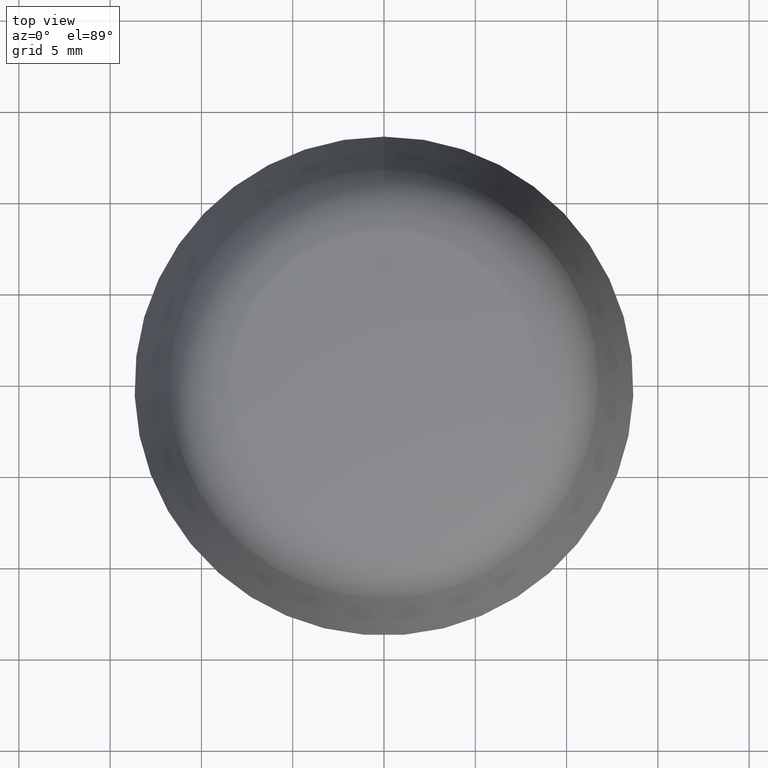
[diagram: clean part render]
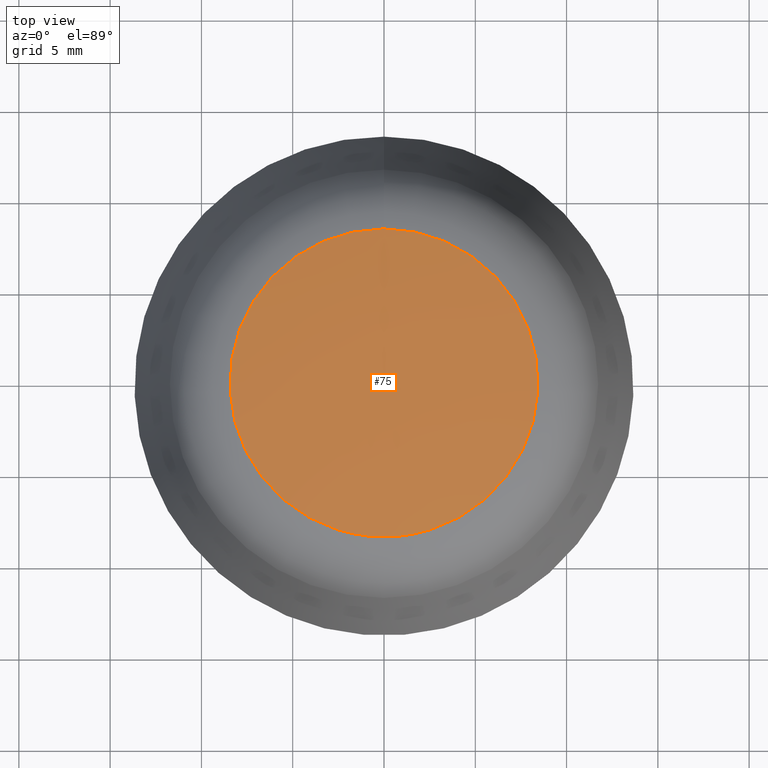
[diagram: same view with one face highlighted and labeled with its STEP entity id]
A machine part, top view. The second image highlights one B-rep face of the part: STEP entity #75.
In plain terms, the highlighted face is a freeform B-spline surface patch.
Its self-contained STEP definition (entity closure, byte-faithful):
#75 = ADVANCED_FACE( '', ( #85, #86 ), #87, .T. );
#85 = FACE_BOUND( '', #111, .T. );
#86 = FACE_OUTER_BOUND( '', #112, .T. );
#87 = ( B_SPLINE_SURFACE( 3, 3, ( ( #114, #115, #116, #117, #118, #119, #120 ), ( #121, #122, #123, #124, #125, #126, #127 ), ( #128, #129, #130, #131, #132, #133, #134 ), ( #135, #136, #137, #138, #139, #140, #141 ) ), .UNSPECIFIED., .F., .T., .F. )B_SPLINE_SURFACE_WITH_KNOTS( ( 4, 4 ), ( 4, 3, 4 ), ( 0.000000000000000, 6.28318530717959 ), ( -1.58186288141690, -1.50492370624145, -1.42798453106601 ), .UNSPECIFIED. )RATIONAL_B_SPLINE_SURFACE( ( ( 1.00000000000000, 0.333333333333333, 0.333333333333333, 1.00000000000000, 0.333333333333333, 0.333333333333333, 1.00000000000000 ), ( 0.998027760974012, 0.332675920324671, 0.332675920324671, 0.998027760974012, 0.332675920324671, 0.332675920324671, 0.998027760974012 ), ( 0.998027760974012, 0.332675920324671, 0.332675920324671, 0.998027760974012, 0.332675920324671, 0.332675920324671, 0.998027760974012 ), ( 1.00000000000000, 0.333333333333333, 0.333333333333333, 1.00000000000000, 0.333333333333333, 0.333333333333333, 1.00000000000000 ) ) )BOUNDED_SURFACE(  )REPRESENTATION_ITEM( '' )GEOMETRIC_REPRESENTATION_ITEM(  )SURFACE(  ) );
#111 = VERTEX_LOOP( '', #171 );
#112 = EDGE_LOOP( '', ( #172 ) );
#114 = CARTESIAN_POINT( '', ( 0.000000000000000, 8.43662452578654, 10.1434522097763 ) );
#115 = CARTESIAN_POINT( '', ( 16.8732490515731, 8.43662452578654, 10.1434522097763 ) );
#116 = CARTESIAN_POINT( '', ( 16.8732490515731, -8.43662452578654, 10.1434522097763 ) );
#117 = CARTESIAN_POINT( '', ( 0.000000000000000, -8.43662452578654, 10.1434522097763 ) );
#118 = CARTESIAN_POINT( '', ( -16.8732490515731, -8.43662452578654, 10.1434522097763 ) );
#119 = CARTESIAN_POINT( '', ( -16.8732490515731, 8.43662452578654, 10.1434522097763 ) );
#120 = CARTESIAN_POINT( '', ( 0.000000000000000, 8.43662452578654, 10.1434522097763 ) );
#121 = CARTESIAN_POINT( '', ( 0.000000000000000, 5.64148254704297, 10.5453675599990 ) );
#122 = CARTESIAN_POINT( '', ( 11.2829650940859, 5.64148254704297, 10.5453675599990 ) );
#123 = CARTESIAN_POINT( '', ( 11.2829650940859, -5.64148254704297, 10.5453675599990 ) );
#124 = CARTESIAN_POINT( '', ( 0.000000000000000, -5.64148254704297, 10.5453675599990 ) );
#125 = CARTESIAN_POINT( '', ( -11.2829650940859, -5.64148254704297, 10.5453675599990 ) );
#126 = CARTESIAN_POINT( '', ( -11.2829650940859, 5.64148254704297, 10.5453675599990 ) );
#127 = CARTESIAN_POINT( '', ( 0.000000000000000, 5.64148254704297, 10.5453675599990 ) );
#128 = CARTESIAN_POINT( '', ( 0.000000000000000, 2.82371706473047, 10.7312500948631 ) );
#129 = CARTESIAN_POINT( '', ( 5.64743412946094, 2.82371706473047, 10.7312500948631 ) );
#130 = CARTESIAN_POINT( '', ( 5.64743412946093, -2.82371706473047, 10.7312500948631 ) );
#131 = CARTESIAN_POINT( '', ( 0.000000000000000, -2.82371706473047, 10.7312500948631 ) );
#132 = CARTESIAN_POINT( '', ( -5.64743412946093, -2.82371706473047, 10.7312500948631 ) );
#133 = CARTESIAN_POINT( '', ( -5.64743412946094, 2.82371706473047, 10.7312500948631 ) );
#134 = CARTESIAN_POINT( '', ( 0.000000000000000, 2.82371706473047, 10.7312500948631 ) );
#135 = CARTESIAN_POINT( '', ( 0.000000000000000, -3.72965547335014E-014, 10.7000000000000 ) );
#136 = CARTESIAN_POINT( '', ( -7.48228189486961E-014, -3.72965547335014E-014, 10.7000000000000 ) );
#137 = CARTESIAN_POINT( '', ( -7.48228189486961E-014, 3.75262642151948E-014, 10.7000000000000 ) );
#138 = CARTESIAN_POINT( '', ( 0.000000000000000, 3.75262642151948E-014, 10.7000000000000 ) );
#139 = CARTESIAN_POINT( '', ( 7.48228189486961E-014, 3.75262642151948E-014, 10.7000000000000 ) );
#140 = CARTESIAN_POINT( '', ( 7.48228189486961E-014, -3.72965547335014E-014, 10.7000000000000 ) );
#141 = CARTESIAN_POINT( '', ( 0.000000000000000, -3.72965547335014E-014, 10.7000000000000 ) );
#171 = VERTEX_POINT( '', #212 );
#172 = ORIENTED_EDGE( '', *, *, #213, .F. );
#212 = CARTESIAN_POINT( '', ( -2.47444019100654E-032, 0.000000000000000, 10.7000000000000 ) );
#213 = EDGE_CURVE( '', #221, #221, #222, .T. );
#221 = VERTEX_POINT( '', #237 );
#222 = CIRCLE( '', #238, 8.43662452578652 );
#237 = CARTESIAN_POINT( '', ( 0.000000000000000, 8.43662452578652, 10.1434522097763 ) );
#238 = AXIS2_PLACEMENT_3D( '', #253, #254, #255 );
#253 = CARTESIAN_POINT( '', ( 0.000000000000000, 1.00629100914771E-016, 10.1434522097763 ) );
#254 = DIRECTION( '', ( 0.000000000000000, -6.12303176911189E-017, -1.00000000000000 ) );
#255 = DIRECTION( '', ( 0.000000000000000, 1.00000000000000, -6.12303176911189E-017 ) );